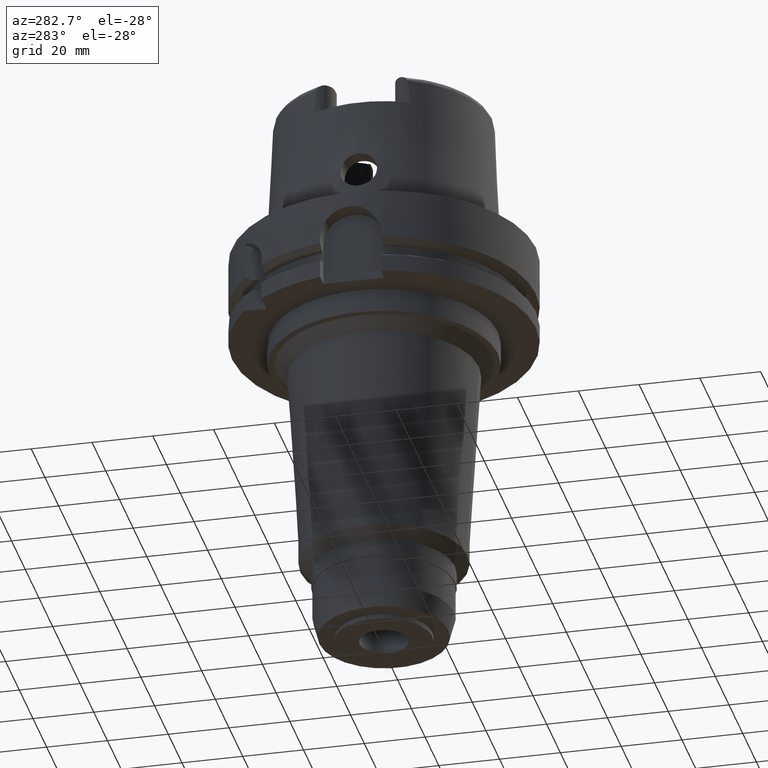
[diagram: clean part render]
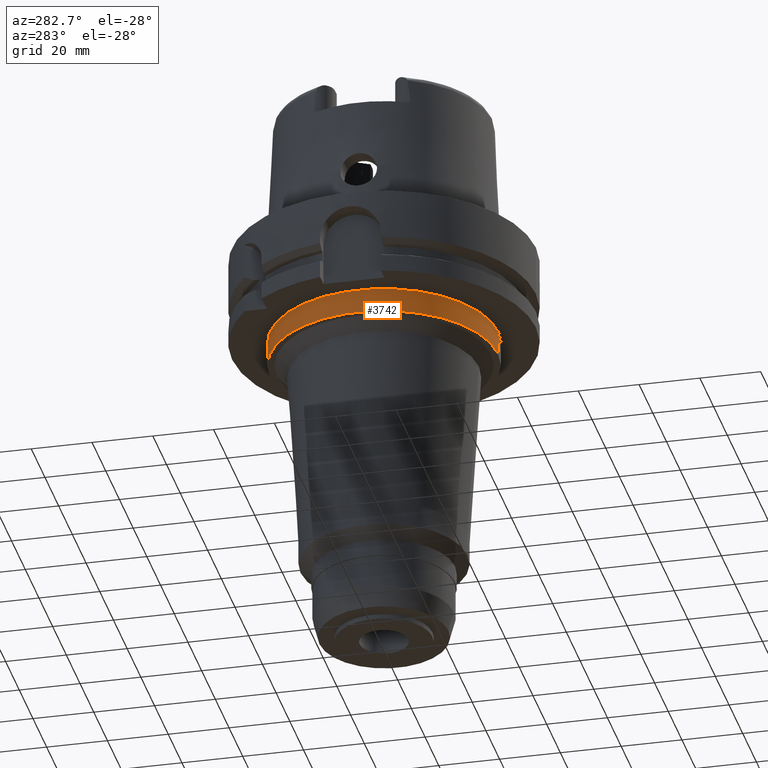
[diagram: same view with one face highlighted and labeled with its STEP entity id]
A machine part, auxiliary view. The second image highlights one B-rep face of the part: STEP entity #3742.
In plain terms, the highlighted cylindrical surface (partial cylindrical patch) has radius 37.5 mm, axis along (0, 0, 1).
Its self-contained STEP definition (entity closure, byte-faithful):
#1309=CARTESIAN_POINT('',(0.E0,0.E0,-3.7E1));
#1310=DIRECTION('',(0.E0,0.E0,1.E0));
#1311=DIRECTION('',(0.E0,1.E0,0.E0));
#1312=AXIS2_PLACEMENT_3D('',#1309,#1310,#1311);
#1333=DIRECTION('',(0.E0,0.E0,-1.E0));
#1334=VECTOR('',#1333,8.E0);
#1335=CARTESIAN_POINT('',(0.E0,3.75E1,-2.9E1));
#1336=LINE('',#1335,#1334);
#1340=DIRECTION('',(0.E0,0.E0,-1.E0));
#1341=VECTOR('',#1340,8.E0);
#1342=CARTESIAN_POINT('',(0.E0,-3.75E1,-2.9E1));
#1343=LINE('',#1342,#1341);
#1408=CARTESIAN_POINT('',(0.E0,0.E0,-2.9E1));
#1409=DIRECTION('',(0.E0,0.E0,-1.E0));
#1410=DIRECTION('',(0.E0,-1.E0,0.E0));
#1411=AXIS2_PLACEMENT_3D('',#1408,#1409,#1410);
#2564=CARTESIAN_POINT('',(0.E0,-3.75E1,-3.7E1));
#2565=CARTESIAN_POINT('',(0.E0,3.75E1,-3.7E1));
#2566=VERTEX_POINT('',#2564);
#2567=VERTEX_POINT('',#2565);
#2568=CARTESIAN_POINT('',(0.E0,3.75E1,-2.9E1));
#2569=VERTEX_POINT('',#2568);
#2570=CARTESIAN_POINT('',(0.E0,-3.75E1,-2.9E1));
#2571=VERTEX_POINT('',#2570);
#3730=CARTESIAN_POINT('',(0.E0,0.E0,-1.4677E2));
#3731=DIRECTION('',(0.E0,0.E0,1.E0));
#3732=DIRECTION('',(0.E0,1.E0,0.E0));
#3733=AXIS2_PLACEMENT_3D('',#3730,#3731,#3732);
#3734=CYLINDRICAL_SURFACE('',#3733,3.75E1);
#3735=ORIENTED_EDGE('',*,*,#3720,.F.);
#3737=ORIENTED_EDGE('',*,*,#3736,.F.);
#3738=ORIENTED_EDGE('',*,*,#3723,.T.);
#3739=ORIENTED_EDGE('',*,*,#3706,.F.);
#3740=EDGE_LOOP('',(#3735,#3737,#3738,#3739));
#3741=FACE_OUTER_BOUND('',#3740,.F.);
#1313=CIRCLE('',#1312,3.75E1);
#1412=CIRCLE('',#1411,3.75E1);
#3706=EDGE_CURVE('',#2567,#2566,#1313,.T.);
#3720=EDGE_CURVE('',#2569,#2567,#1336,.T.);
#3723=EDGE_CURVE('',#2571,#2566,#1343,.T.);
#3736=EDGE_CURVE('',#2571,#2569,#1412,.T.);
#3742=ADVANCED_FACE('',(#3741),#3734,.T.);